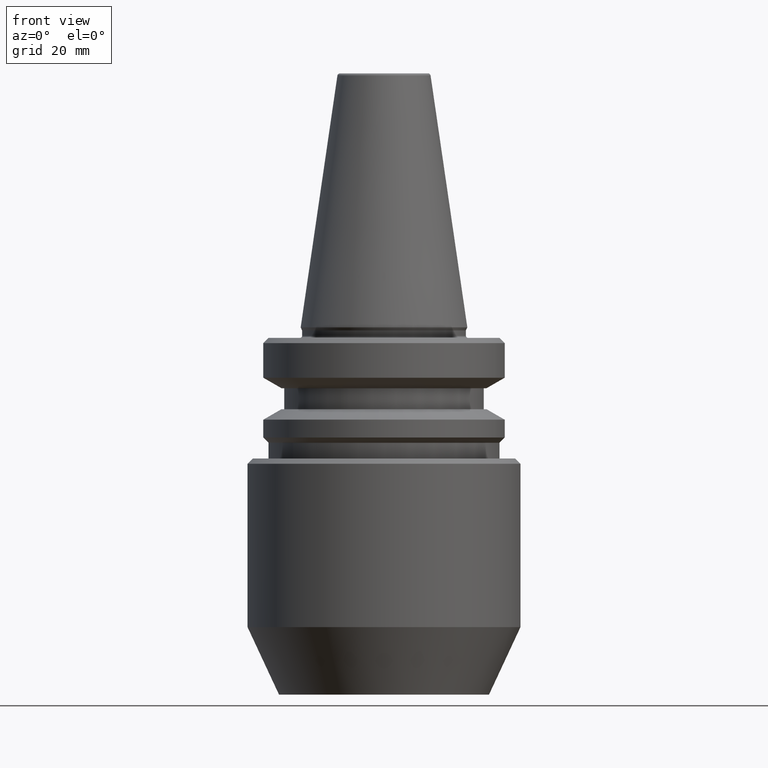
[diagram: clean part render]
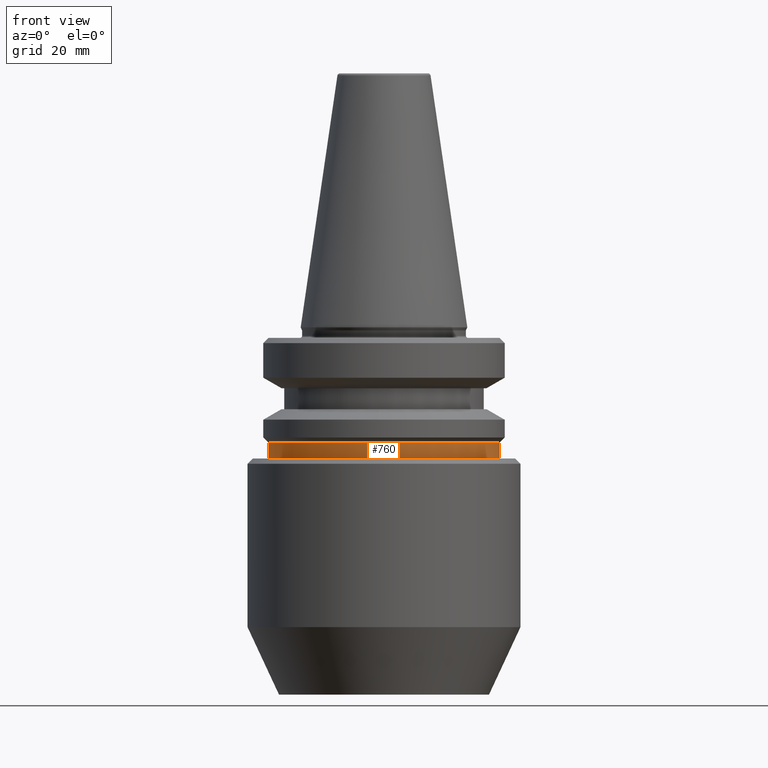
[diagram: same view with one face highlighted and labeled with its STEP entity id]
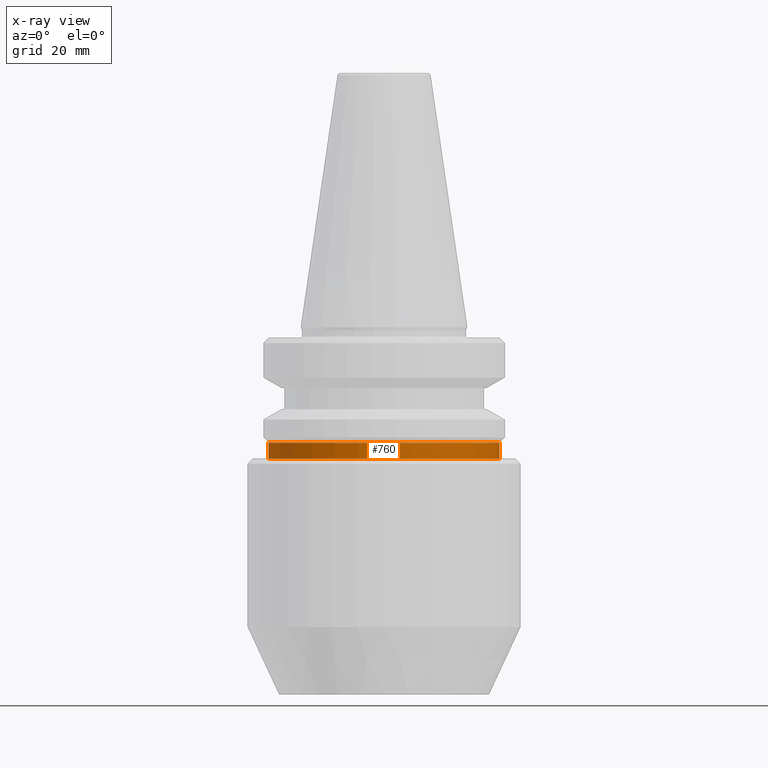
[diagram: x-ray of the same camera — body ghosted, the highlighted face saturated]
A machine part, front view. The second image highlights one B-rep face of the part: STEP entity #760.
The next image is the same camera in x-ray: the body ghosted, the highlighted face saturated — about 0% of this face is hidden behind the body in this view.
In plain terms, the highlighted cylindrical surface (partial cylindrical patch) has radius 22 mm, axis along (-0, -0, 1).
Its self-contained STEP definition (entity closure, byte-faithful):
#5 = DIRECTION ( 'NONE',  ( -0.0000000000000000000, -0.0000000000000000000, 1.000000000000000000 ) ) ;
#10 = AXIS2_PLACEMENT_3D ( 'NONE', #489, #714, #332 ) ;
#18 = LINE ( 'NONE', #500, #252 ) ;
#46 = CARTESIAN_POINT ( 'NONE',  ( -21.99999999999990800, 2.694222958124165800E-015, -25.00000000000002100 ) ) ;
#56 = DIRECTION ( 'NONE',  ( -0.0000000000000000000, -0.0000000000000000000, 1.000000000000000000 ) ) ;
#175 = VERTEX_POINT ( 'NONE', #708 ) ;
#209 = CYLINDRICAL_SURFACE ( 'NONE', #414, 21.99999999999990800 ) ;
#252 = VECTOR ( 'NONE', #630, 1000.000000000000000 ) ;
#254 = ORIENTED_EDGE ( 'NONE', *, *, #526, .F. ) ;
#285 = CARTESIAN_POINT ( 'NONE',  ( 0.0000000000000000000, 0.0000000000000000000, -21.99999999999990800 ) ) ;
#330 = DIRECTION ( 'NONE',  ( -0.0000000000000000000, -0.0000000000000000000, 1.000000000000000000 ) ) ;
#332 = DIRECTION ( 'NONE',  ( 1.000000000000000000, 0.0000000000000000000, 0.0000000000000000000 ) ) ;
#361 = CIRCLE ( 'NONE', #10, 21.99999999999990800 ) ;
#366 = EDGE_CURVE ( 'NONE', #175, #557, #568, .T. ) ;
#368 = FACE_OUTER_BOUND ( 'NONE', #837, .T. ) ;
#369 = CARTESIAN_POINT ( 'NONE',  ( 21.99999999999990800, 0.0000000000000000000, -25.00000000000002100 ) ) ;
#394 = EDGE_CURVE ( 'NONE', #833, #694, #361, .T. ) ;
#414 = AXIS2_PLACEMENT_3D ( 'NONE', #1013, #330, #491 ) ;
#455 = EDGE_CURVE ( 'NONE', #694, #557, #18, .T. ) ;
#478 = AXIS2_PLACEMENT_3D ( 'NONE', #285, #56, #985 ) ;
#489 = CARTESIAN_POINT ( 'NONE',  ( 0.0000000000000000000, 0.0000000000000000000, -25.00000000000002100 ) ) ;
#491 = DIRECTION ( 'NONE',  ( 1.000000000000000000, 0.0000000000000000000, 0.0000000000000000000 ) ) ;
#498 = ORIENTED_EDGE ( 'NONE', *, *, #366, .F. ) ;
#500 = CARTESIAN_POINT ( 'NONE',  ( 21.99999999999990800, 0.0000000000000000000, 95.66143460902885900 ) ) ;
#526 = EDGE_CURVE ( 'NONE', #833, #175, #595, .T. ) ;
#557 = VERTEX_POINT ( 'NONE', #661 ) ;
#568 = CIRCLE ( 'NONE', #478, 21.99999999999990800 ) ;
#595 = LINE ( 'NONE', #895, #1028 ) ;
#630 = DIRECTION ( 'NONE',  ( -0.0000000000000000000, -0.0000000000000000000, 1.000000000000000000 ) ) ;
#661 = CARTESIAN_POINT ( 'NONE',  ( 21.99999999999990800, 0.0000000000000000000, -21.99999999999990800 ) ) ;
#672 = ORIENTED_EDGE ( 'NONE', *, *, #455, .T. ) ;
#694 = VERTEX_POINT ( 'NONE', #369 ) ;
#708 = CARTESIAN_POINT ( 'NONE',  ( -21.99999999999990800, 2.694222958124165800E-015, -21.99999999999990800 ) ) ;
#714 = DIRECTION ( 'NONE',  ( -0.0000000000000000000, -0.0000000000000000000, 1.000000000000000000 ) ) ;
#760 = ADVANCED_FACE ( 'NONE', ( #368 ), #209, .T. ) ;
#833 = VERTEX_POINT ( 'NONE', #46 ) ;
#837 = EDGE_LOOP ( 'NONE', ( #254, #856, #672, #498 ) ) ;
#856 = ORIENTED_EDGE ( 'NONE', *, *, #394, .T. ) ;
#895 = CARTESIAN_POINT ( 'NONE',  ( -21.99999999999990800, 2.694222958124165800E-015, 95.66143460902885900 ) ) ;
#985 = DIRECTION ( 'NONE',  ( 1.000000000000000000, 0.0000000000000000000, 0.0000000000000000000 ) ) ;
#1013 = CARTESIAN_POINT ( 'NONE',  ( 0.0000000000000000000, 0.0000000000000000000, 95.66143460902885900 ) ) ;
#1028 = VECTOR ( 'NONE', #5, 1000.000000000000000 ) ;